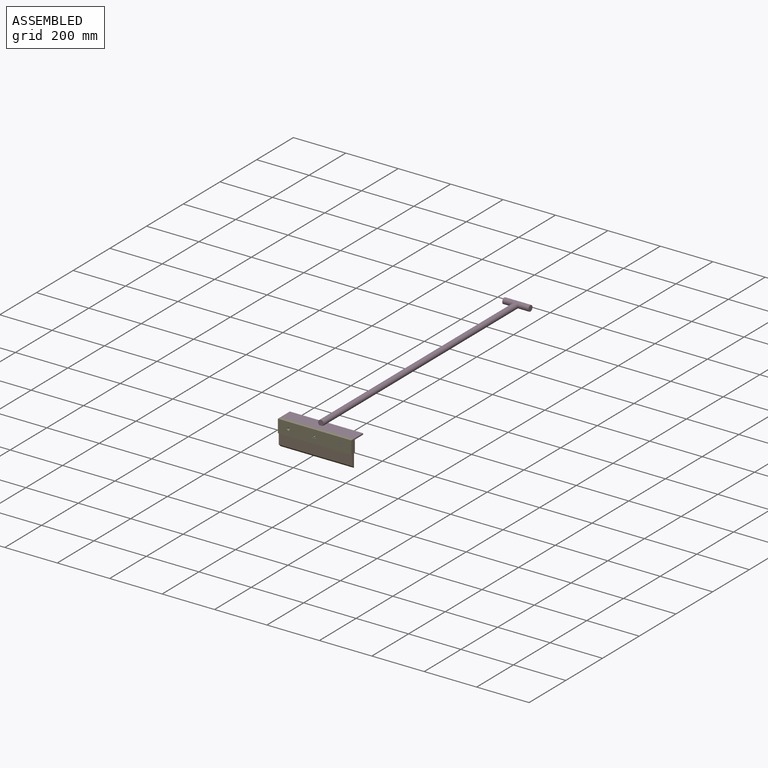
[diagram: assembled view]
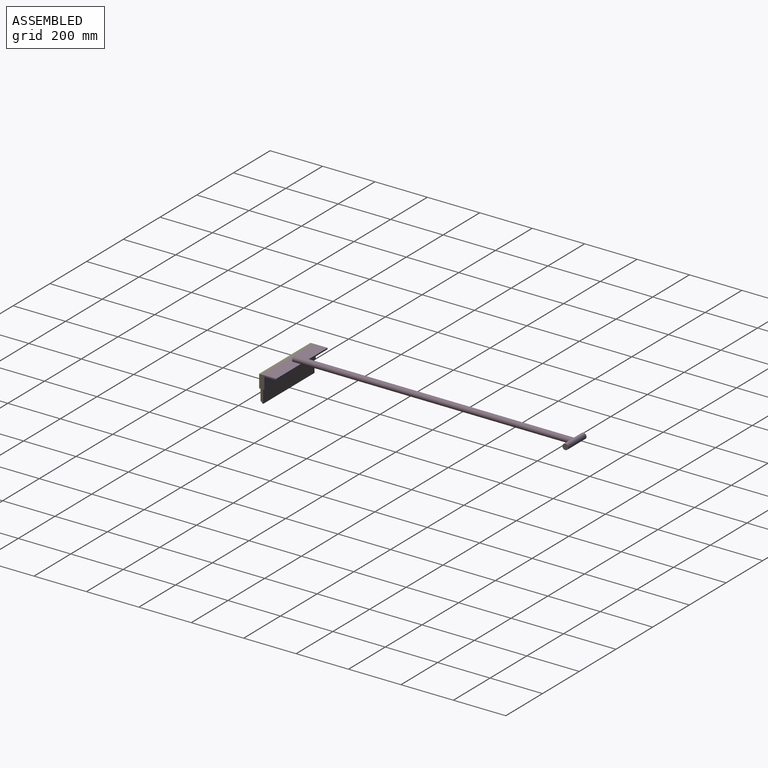
[diagram: assembled view, second angle]
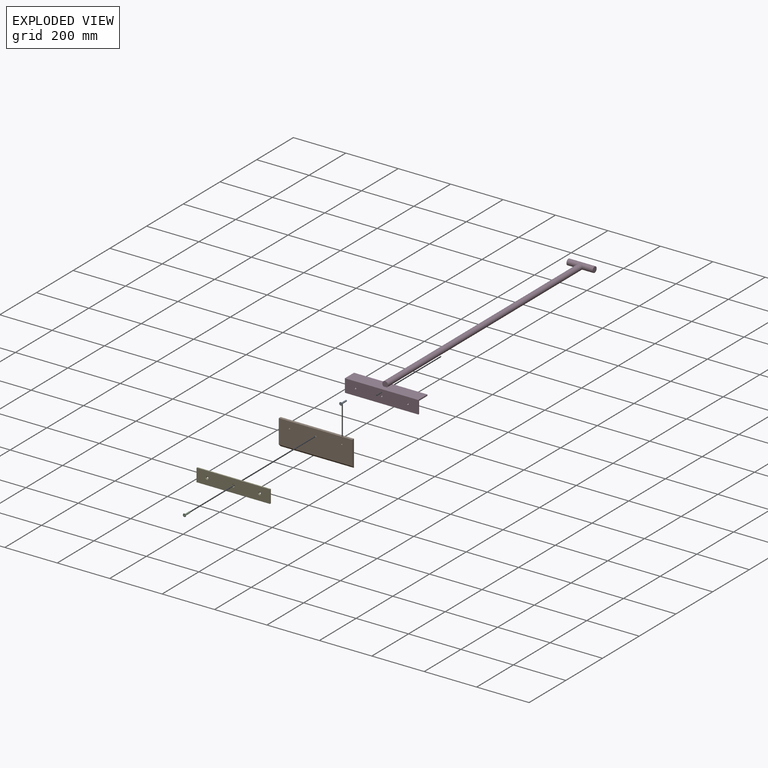
[diagram: exploded view]
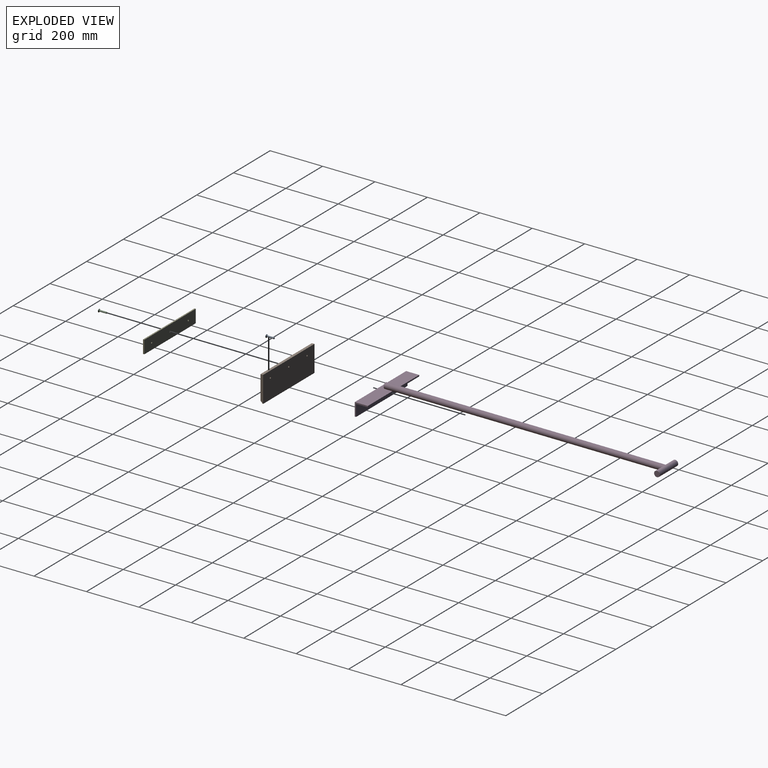
[diagram: exploded view, second angle]
ASSEMBLY  parts=5 mates=4
PART A: 23 faces, bbox 12x30x12 mm
  f0: cone r=3mm half-angle=45deg, axis (0,1,0), area 18.5mm2, adj f1,f5
  f1: cylinder r=3mm len=25.8mm, axis (0,1,0), area 486.3mm2, adj f0,f2
  f2: cone r=3mm half-angle=45deg, axis (0,1,0), area 120mm2, adj f1,f3
  f3: cylinder r=6mm len=12mm, axis (0,1,0), area 15.1mm2, adj f2,f4
  f4: plane 12x12mm, normal (0,1,0), area 93.2mm2, adj f3,f6,f7,f8,f9,f10,f11,f13
  f5: plane 4.4x4.4mm, normal (0,-1,0), area 15.2mm2, adj f0
  f6: plane 2.7x2.31mm, normal (-0.99,0.12,0), area 5.4mm2, adj f4,f7,f12,f20
  f7: plane 2.7x1.68mm, normal (0,0.12,-0.99), area 3.7mm2, adj f4,f6,f8,f12
  f8: plane 2.7x2.31mm, normal (0.99,0.12,0), area 5.4mm2, adj f4,f7,f12,f21
  f9: plane 2.7x1.68mm, normal (0,0.12,0.99), area 3.7mm2, adj f4,f10,f11,f12
  f10: plane 2.7x2.31mm, normal (-0.99,0.12,0), area 5.4mm2, adj f4,f9,f12,f19
  f11: plane 2.7x2.31mm, normal (0.99,0.12,0), area 5.4mm2, adj f4,f9,f12,f22
  f12: plane 6.04x6.04mm, normal (0,1,0), area 11.4mm2, adj f6,f7,f8,f9,f10,f11,f13,f14
  f13: plane 2.7x1.68mm, normal (-0.99,0.12,0), area 3.7mm2, adj f4,f12,f14,f15
  f14: plane 2.7x2.31mm, normal (0,0.12,-0.99), area 5.4mm2, adj f4,f12,f13,f20
  f15: plane 2.7x2.31mm, normal (0,0.12,0.99), area 5.4mm2, adj f4,f12,f13,f19
  f16: plane 2.7x2.31mm, normal (0,0.12,-0.99), area 5.4mm2, adj f4,f12,f17,f21
  f17: plane 2.7x1.68mm, normal (0.99,0.12,0), area 3.7mm2, adj f4,f12,f16,f18
  f18: plane 2.7x2.31mm, normal (0,0.12,0.99), area 5.4mm2, adj f4,f12,f17,f22
  f19: cylinder r=0.54mm len=2.75mm, axis (0.12,0.99,-0.12), area 2.3mm2, adj f4,f10,f12,f15
  f20: cylinder r=0.54mm len=2.75mm, axis (0.12,0.99,0.12), area 2.3mm2, adj f4,f6,f12,f14
  f21: cylinder r=0.54mm len=2.75mm, axis (-0.12,0.99,0.12), area 2.3mm2, adj f4,f8,f12,f16
  f22: cylinder r=0.54mm len=2.75mm, axis (-0.12,0.99,-0.12), area 2.3mm2, adj f4,f11,f12,f18
PART B: 10 faces, bbox 280x10x100 mm
  f0: plane 280x10mm, normal (0,0,1), area 2800mm2, adj f1,f4,f5,f6
  f1: plane 280x100mm, normal (0,-1,0), area 27915.2mm2, adj f0,f2,f5,f6,f7,f8,f9
  f2: plane 280x1mm, normal (0,0,-1), area 280mm2, adj f1,f3,f5,f6
  f3: plane 280x9mm, normal (0,0.71,-0.71), area 3563.8mm2, adj f2,f4,f5,f6
  f4: plane 280x91mm, normal (0,1,0), area 25395.2mm2, adj f0,f3,f5,f6,f7,f8,f9
  f5: plane 100x10mm, normal (-1,0,0), area 959.5mm2, adj f0,f1,f2,f3,f4
  f6: plane 100x10mm, normal (1,0,0), area 959.5mm2, adj f0,f1,f2,f3,f4
  f7: cylinder r=3mm len=10mm, axis (0,1,0), area 188.5mm2, adj f1,f4
  f8: cylinder r=3mm len=10mm, axis (0,1,0), area 188.5mm2, adj f1,f4
  f9: cylinder r=3mm len=10mm, axis (0,1,0), area 188.5mm2, adj f1,f4
PART C: same geometry as A
PART D: 16 faces, bbox 280x1101x70 mm
  f0: cylinder r=11mm len=1070mm, axis (0,1,0), area 73064.8mm2, adj f1,f2,f5,f7
  f1: plane 22x20mm, normal (0,1,0), area 362.9mm2, adj f0,f5
  f2: cylinder r=11mm len=100mm, axis (-1,0,0), area 6427.5mm2, adj f0,f3,f4
  f3: plane 22x22mm, normal (1,0,0), area 380.1mm2, adj f2
  f4: plane 22x22mm, normal (-1,0,0), area 380.1mm2, adj f2
  f5: plane 280x50mm, normal (0,0,-1), area 13620.5mm2, adj f0,f1,f7,f8,f11,f12
  f6: plane 280x45mm, normal (0,0,1), area 12600mm2, adj f7,f10,f11,f12
  f7: plane 280x5mm, normal (0,-1,0), area 1382.8mm2, adj f0,f5,f6,f11,f12
  f8: plane 280x50mm, normal (0,1,0), area 13915.2mm2, adj f5,f9,f11,f12,f13,f14,f15
  f9: plane 280x5mm, normal (0,0,1), area 1400mm2, adj f8,f10,f11,f12
  f10: plane 280x45mm, normal (0,-1,0), area 12515.2mm2, adj f6,f9,f11,f12,f13,f14,f15
  f11: plane 50x50mm, normal (1,0,0), area 475mm2, adj f5,f6,f7,f8,f9,f10
  f12: plane 50x50mm, normal (-1,0,0), area 475mm2, adj f5,f6,f7,f8,f9,f10
  f13: cylinder r=3mm len=6mm, axis (0,1,0), area 94.2mm2, adj f8,f10
  f14: cylinder r=3mm len=6mm, axis (0,1,0), area 94.2mm2, adj f8,f10
  f15: cylinder r=3mm len=6mm, axis (0,1,0), area 94.2mm2, adj f8,f10
PART E: 12 faces, bbox 280x5x50 mm
  f0: plane 280x5mm, normal (0,0,1), area 1400mm2, adj f1,f3,f4,f5
  f1: plane 50x5mm, normal (-1,0,0), area 250mm2, adj f0,f2,f4,f5
  f2: plane 280x5mm, normal (0,0,-1), area 1400mm2, adj f1,f3,f4,f5
  f3: plane 50x5mm, normal (1,0,0), area 250mm2, adj f0,f2,f4,f5
  f4: plane 280x50mm, normal (0,-1,0), area 13704.4mm2, adj f0,f1,f2,f3,f7,f9,f11
  f5: plane 280x50mm, normal (0,1,0), area 13915.2mm2, adj f0,f1,f2,f3,f6,f8,f10
  f6: cylinder r=3mm len=6mm, axis (0,-1,0), area 45.2mm2, adj f5,f7
  f7: cone r=3mm half-angle=45deg, axis (0,-1,0), area 99.3mm2, adj f4,f6
  f8: cylinder r=3mm len=6mm, axis (0,-1,0), area 45.2mm2, adj f5,f9
  f9: cone r=3mm half-angle=45deg, axis (0,-1,0), area 99.3mm2, adj f4,f8
  f10: cylinder r=3mm len=6mm, axis (0,-1,0), area 45.2mm2, adj f5,f11
  f11: cone r=3mm half-angle=45deg, axis (0,-1,0), area 99.3mm2, adj f4,f10
PLACE A rot(axis=(0,0,-1),180deg) t=(937.41,66.31,-522.6)mm
PLACE B rot(axis=(0,0,-1),180deg) t=(697.41,49.3,-538.74)mm
PLACE C rot(axis=(0,0,-1),180deg) t=(837.41,56.81,-522.6)mm
PLACE D rot(axis=(1,0,0),180deg) t=(837.41,97.91,-488.6)mm fixed
PLACE E t=(842.83,67.91,-552.21)mm
MATE fastened D.f5 <-> B.f0  axis (0,0,-1) through (977.41,77.91,-497.6)mm
MATE slider E.f6 <-> C.f0  axis (0,-1,0) through (837.41,62.91,-522.6)mm
MATE slider E.f8 <-> A.f0  axis (0,-1,0) through (937.41,62.91,-522.6)mm
MATE fastened B.f4 <-> E.f5  axis (0,-1,0) through (977.41,67.91,-497.6)mm
